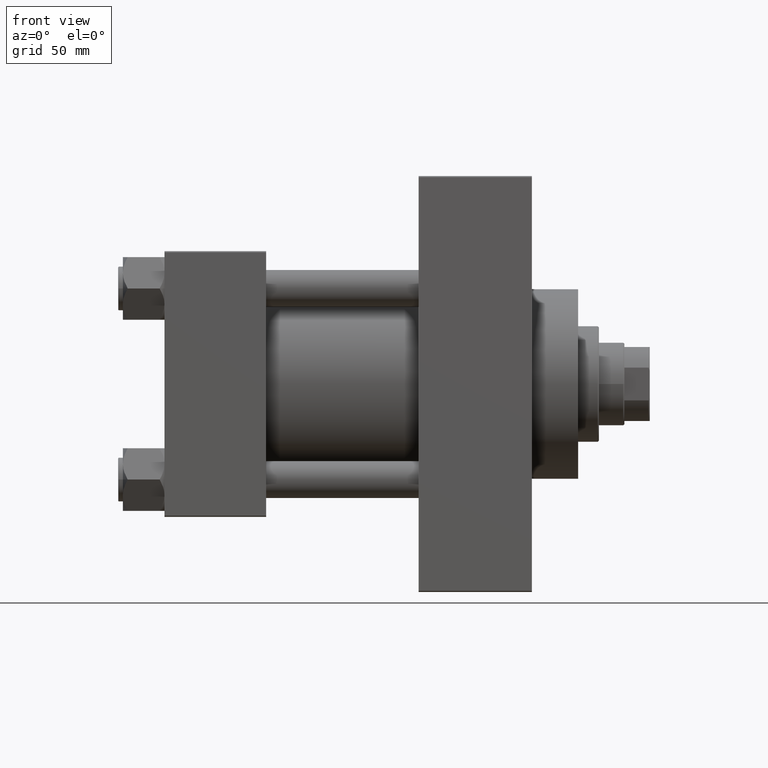
[diagram: clean part render]
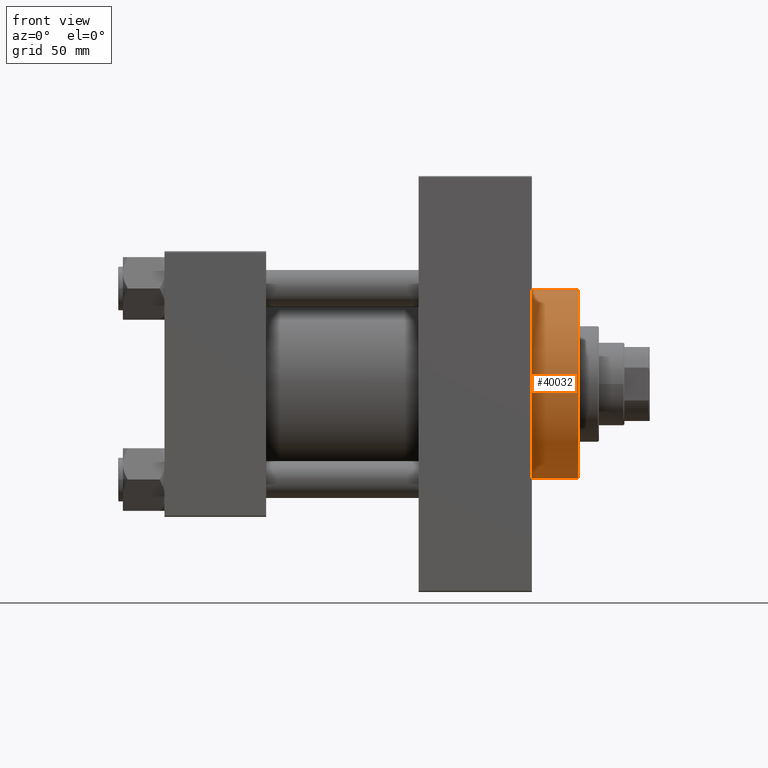
[diagram: same view with one face highlighted and labeled with its STEP entity id]
A machine part, front view. The second image highlights one B-rep face of the part: STEP entity #40032.
In plain terms, the highlighted cylindrical surface (partial cylindrical patch) has radius 41 mm, axis along (-1, -0, -0).
Its self-contained STEP definition (entity closure, byte-faithful):
#896 = EDGE_CURVE ( 'NONE', #19877, #3652, #1505, .T. ) ;
#1190 = CYLINDRICAL_SURFACE ( 'NONE', #46498, 41.00000000000000000 ) ;
#1505 = CIRCLE ( 'NONE', #30067, 41.00000000000000000 ) ;
#2143 = CARTESIAN_POINT ( 'NONE',  ( 179.0000000000000000, 5.021051876504148963E-15, -41.00000000000000000 ) ) ;
#3652 = VERTEX_POINT ( 'NONE', #2143 ) ;
#4164 = CARTESIAN_POINT ( 'NONE',  ( 179.0000000000000000, 0.000000000000000000, 0.000000000000000000 ) ) ;
#4337 = ORIENTED_EDGE ( 'NONE', *, *, #29803, .F. ) ;
#6678 = VERTEX_POINT ( 'NONE', #19688 ) ;
#10210 = CARTESIAN_POINT ( 'NONE',  ( 159.0000000000000000, 0.000000000000000000, 0.000000000000000000 ) ) ;
#11197 = DIRECTION ( 'NONE',  ( 0.000000000000000000, 0.000000000000000000, -1.000000000000000000 ) ) ;
#11959 = DIRECTION ( 'NONE',  ( 0.000000000000000000, 0.000000000000000000, -1.000000000000000000 ) ) ;
#12936 = VECTOR ( 'NONE', #18901, 1000.000000000000000 ) ;
#13203 = ORIENTED_EDGE ( 'NONE', *, *, #48123, .T. ) ;
#13347 = ORIENTED_EDGE ( 'NONE', *, *, #46716, .T. ) ;
#15016 = CIRCLE ( 'NONE', #39571, 41.00000000000000000 ) ;
#15606 = DIRECTION ( 'NONE',  ( 0.000000000000000000, 0.000000000000000000, 1.000000000000000000 ) ) ;
#15961 = LINE ( 'NONE', #46279, #23790 ) ;
#18901 = DIRECTION ( 'NONE',  ( -1.000000000000000000, -0.000000000000000000, -0.000000000000000000 ) ) ;
#19688 = CARTESIAN_POINT ( 'NONE',  ( 159.0000000000000000, 0.000000000000000000, 41.00000000000000000 ) ) ;
#19877 = VERTEX_POINT ( 'NONE', #42572 ) ;
#20845 = CARTESIAN_POINT ( 'NONE',  ( 159.0000000000000000, 5.021051876504148963E-15, -41.00000000000000000 ) ) ;
#23790 = VECTOR ( 'NONE', #34610, 1000.000000000000000 ) ;
#27983 = EDGE_LOOP ( 'NONE', ( #4337, #34625, #13203, #13347 ) ) ;
#29595 = CARTESIAN_POINT ( 'NONE',  ( 179.0000000000000000, 5.021051876504148963E-15, -41.00000000000000000 ) ) ;
#29803 = EDGE_CURVE ( 'NONE', #3652, #33387, #41993, .T. ) ;
#30067 = AXIS2_PLACEMENT_3D ( 'NONE', #38544, #46010, #11959 ) ;
#31258 = FACE_OUTER_BOUND ( 'NONE', #27983, .T. ) ;
#33387 = VERTEX_POINT ( 'NONE', #20845 ) ;
#34492 = DIRECTION ( 'NONE',  ( -1.000000000000000000, -0.000000000000000000, -0.000000000000000000 ) ) ;
#34610 = DIRECTION ( 'NONE',  ( -1.000000000000000000, -0.000000000000000000, -0.000000000000000000 ) ) ;
#34625 = ORIENTED_EDGE ( 'NONE', *, *, #896, .F. ) ;
#36798 = DIRECTION ( 'NONE',  ( 1.000000000000000000, 0.000000000000000000, 0.000000000000000000 ) ) ;
#38544 = CARTESIAN_POINT ( 'NONE',  ( 179.0000000000000000, 0.000000000000000000, 0.000000000000000000 ) ) ;
#39571 = AXIS2_PLACEMENT_3D ( 'NONE', #10210, #36798, #11197 ) ;
#40032 = ADVANCED_FACE ( 'NONE', ( #31258 ), #1190, .T. ) ;
#41993 = LINE ( 'NONE', #29595, #12936 ) ;
#42572 = CARTESIAN_POINT ( 'NONE',  ( 179.0000000000000000, 0.000000000000000000, 41.00000000000000000 ) ) ;
#46010 = DIRECTION ( 'NONE',  ( 1.000000000000000000, 0.000000000000000000, 0.000000000000000000 ) ) ;
#46279 = CARTESIAN_POINT ( 'NONE',  ( 179.0000000000000000, 0.000000000000000000, 41.00000000000000000 ) ) ;
#46498 = AXIS2_PLACEMENT_3D ( 'NONE', #4164, #34492, #15606 ) ;
#46716 = EDGE_CURVE ( 'NONE', #6678, #33387, #15016, .T. ) ;
#48123 = EDGE_CURVE ( 'NONE', #19877, #6678, #15961, .T. ) ;